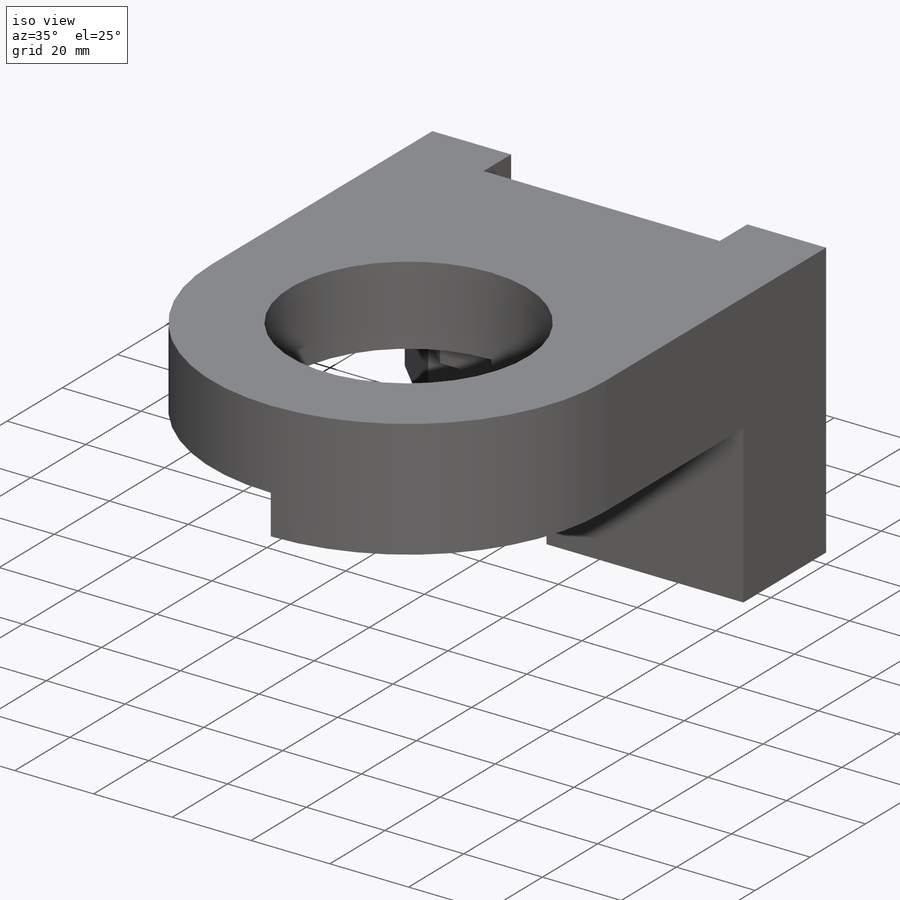
[diagram: iso view]
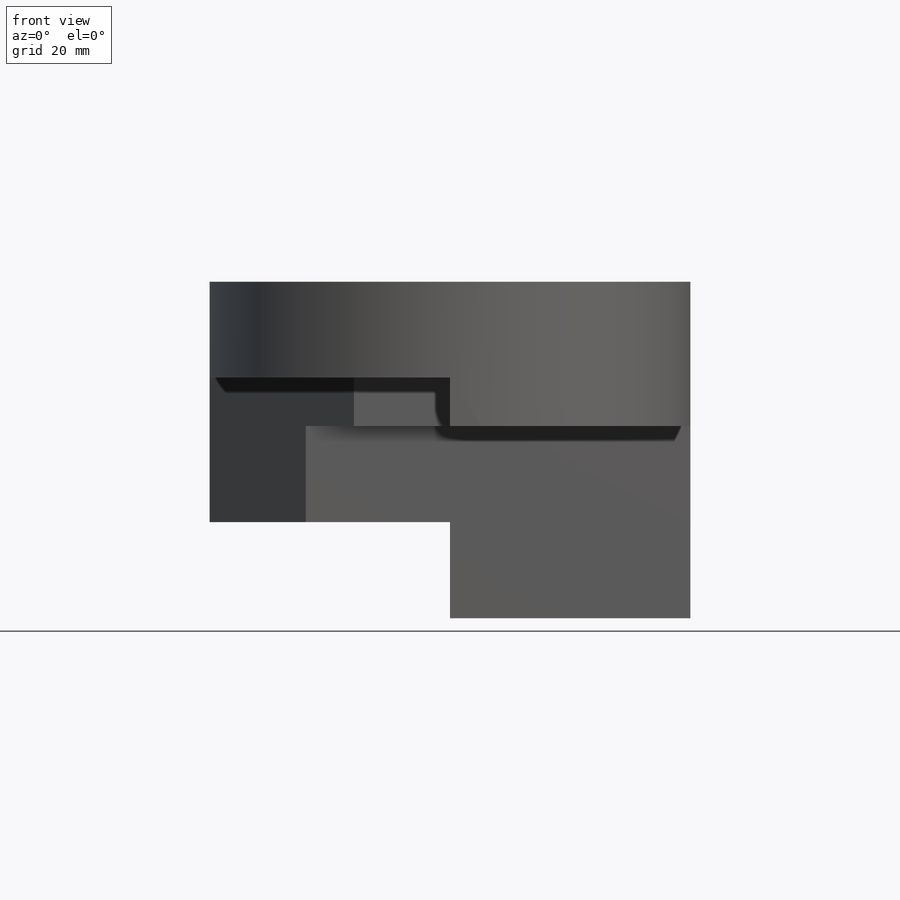
[diagram: front view]
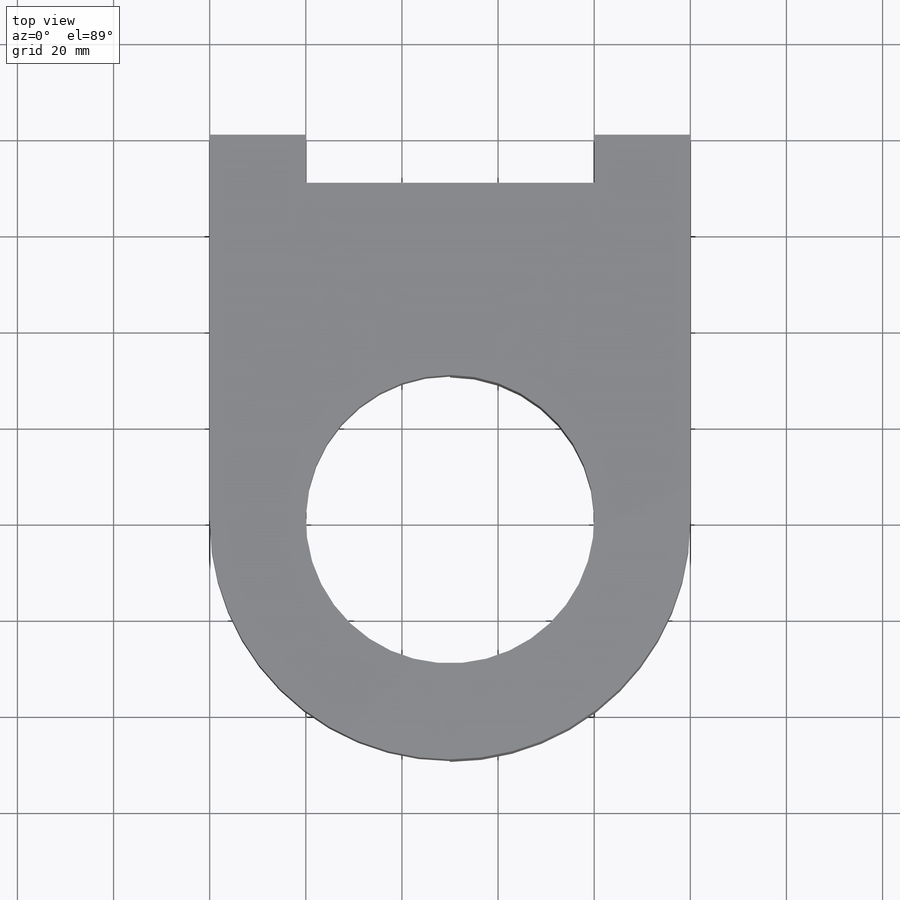
[diagram: top view]
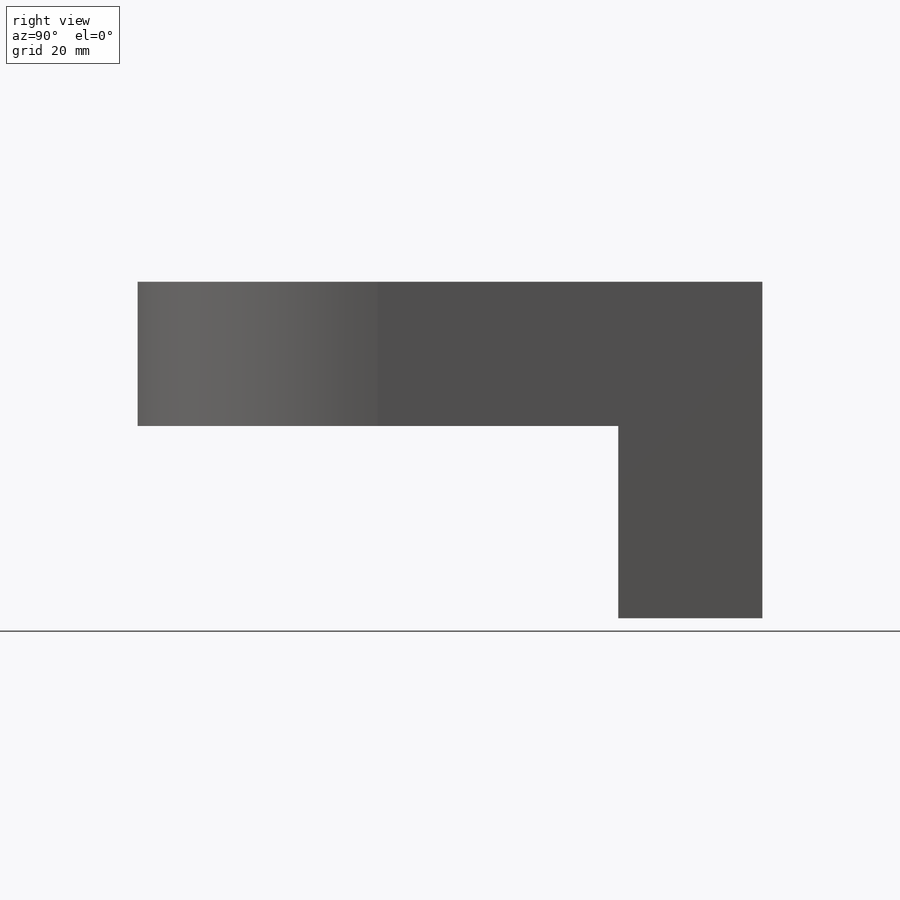
[diagram: right view]
SOLIDWORKS PART (.sldprt)
format: sldprt  version: not decoded by parser v0  size: 285,696 bytes
history: native  units: mm
features: sketch x11, cut_extrude x6, extrude x5, material x1 (+13 scaffold rows collapsed)
feature tree (36):
  scaffold x13  (default folders/planes/origin — collapsed)
  material  "Material <not specified>"
  sketch  "Sketch1"  dims[D1=100.0mm D2=40.0mm]
  extrude  "Boss-Extrude1"  Depth=30mm
  sketch  "Sketch2"  dims[D1=50.0mm D2=20.0mm]
  cut_extrude  "Cut-Extrude1"  Depth=30mm
  sketch  "Sketch3"  dims[D1=10.0mm D2=20.0mm D3=20.0mm]
  cut_extrude  "Cut-Extrude3"  Depth=110mm
  sketch  "Sketch4"
  extrude  "Boss-Extrude2"  Depth=10mm
  sketch  "Sketch5"  dims[D1=10.0mm]
  extrude  "Boss-Extrude3"  Depth=10mm
  sketch  "Sketch6"  dims[D1=10.0mm D2=30.0mm]
  cut_extrude  "Cut-Extrude4"  Depth=45mm
  sketch  "Sketch7"  dims[D1=100.0mm D2=130.0mm]
  extrude  "Boss-Extrude4"  Depth=20mm
  sketch  "Sketch8"  dims[c1.D1=60.0mm c1.D3=60.0mm c1.D2=40.0mm c2.D3=50.0mm]
  cut_extrude  "Cut-Extrude5"  Depth=20mm
  sketch  "Sketch9"  dims[c1.D1=50.0mm c1.D2=50.0mm c1.D3=100.0mm c1.D4=50.0mm c1.D5=50.0mm c1.D6=50.0mm c2.D5=50.0mm]
  cut_extrude  "Cut-Extrude6"  Depth=20mm
  sketch  "Sketch10"  dims[D1=20.0mm]
  extrude  "Boss-Extrude5"  Depth=10mm
  sketch  "Sketch12"
  cut_extrude  "Cut-Extrude9"  Depth=56mm
decode coverage: 20 of 22 modeling features carry decoded parameters
note: suppression state not decoded; provenance and decode notes live in map.json
